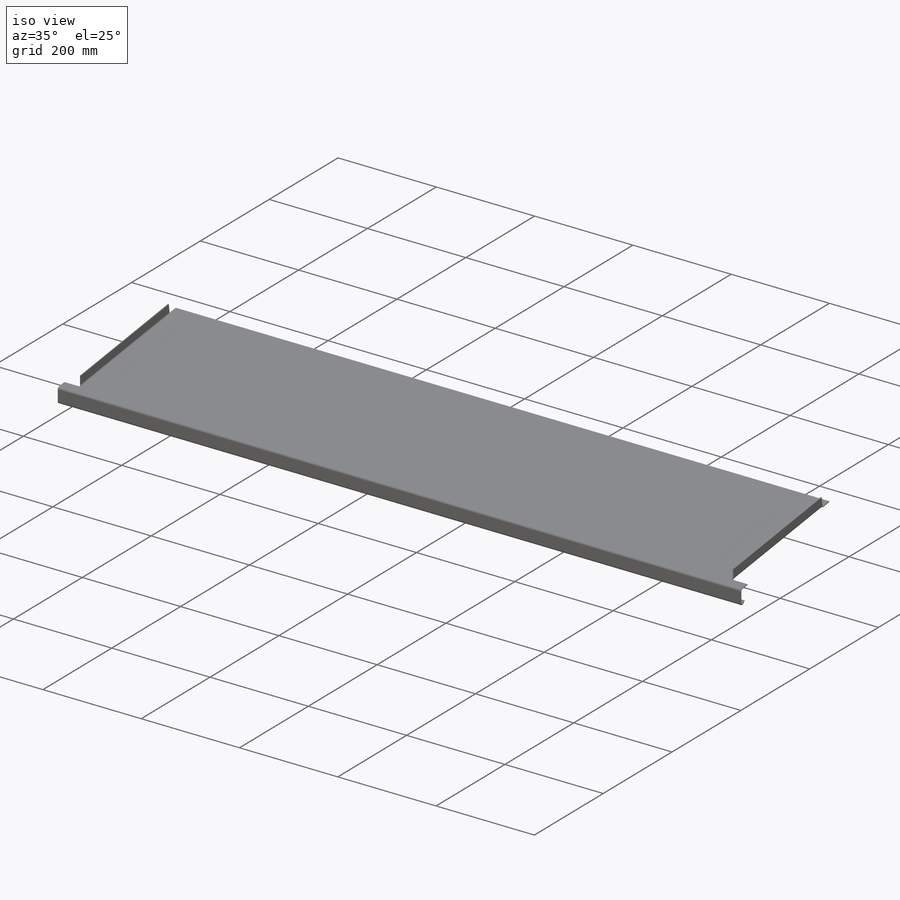
[diagram: iso view]
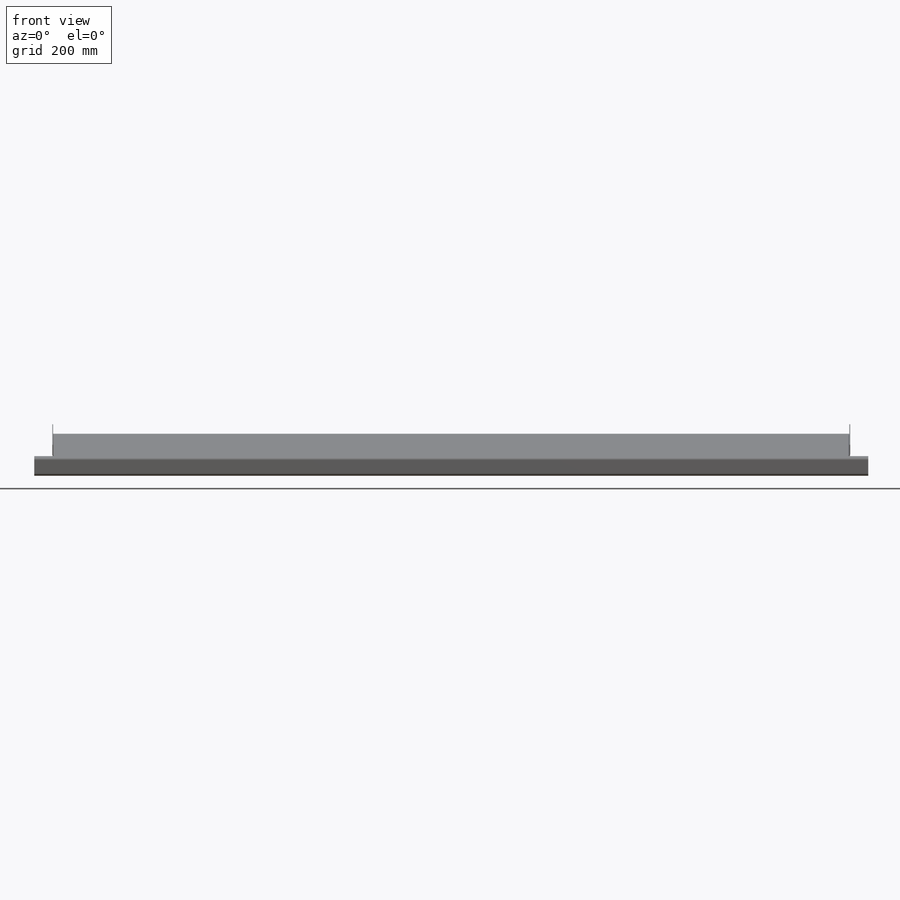
[diagram: front view]
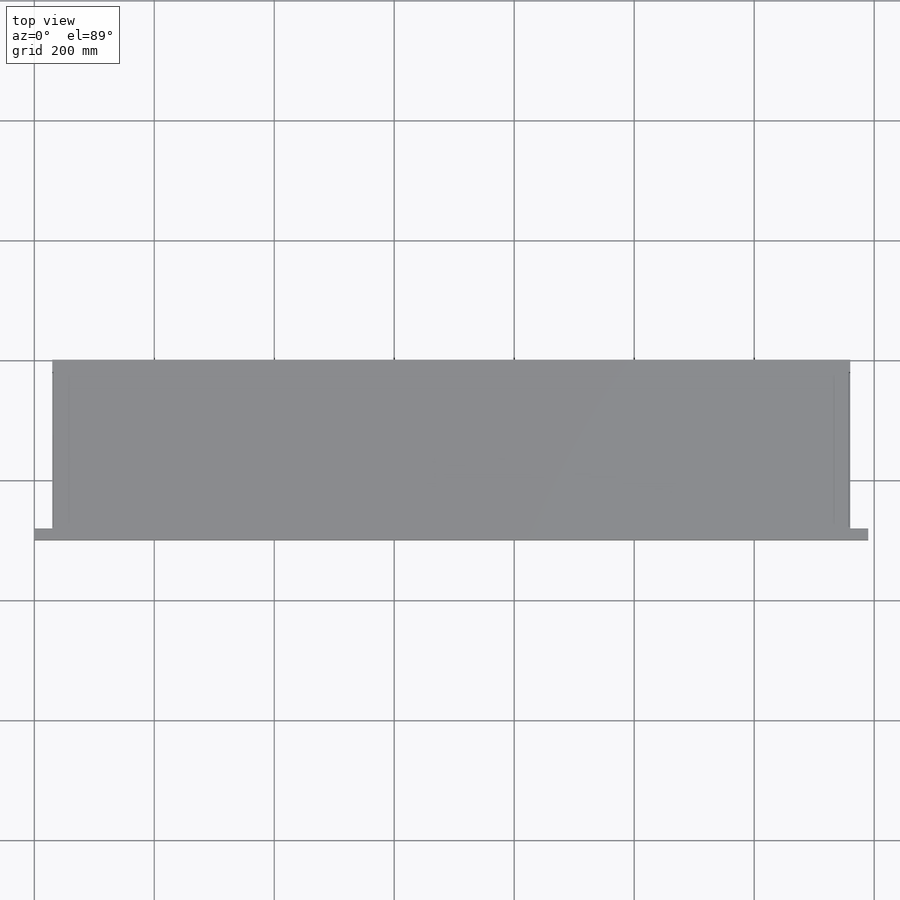
[diagram: top view]
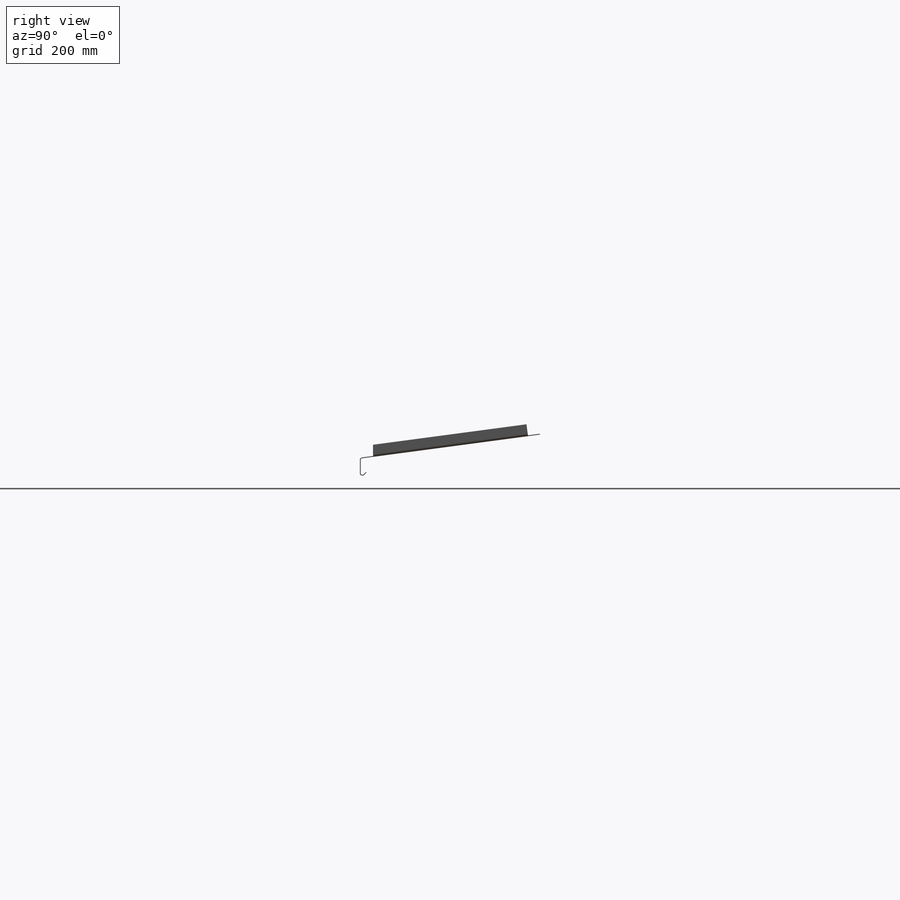
[diagram: right view]
SOLIDWORKS PART (.sldprt)
format: sldprt  version: not decoded by parser v0  size: 663,040 bytes
history: native  units: mm
features: sketch x18, sheet_metal_op x6, plane x3, cut_extrude x2, material x1 + 10 further entries (+10 scaffold rows collapsed)
feature tree (50):
  scaffold x10  (default folders/planes/origin — collapsed)
  material  "ALU"
  plane  "Plan de face"
  plane  "Plan de dessus"
  plane  "Plan de droite"
  sketch  "Esquisse1"  dims[c1.D1=345.0mm c1.D2=30.0mm c1.D3=~341.885658mm c2.D3=~97.704394deg c3.D3=40.0mm c3.D1=300.0mm c4.D1=2.6mm c4.D2=0.33 c4.D3=0.0deg]
  sheet_metal_op  "Tôle de base pliée1"
  sketch  "Esquisse6"  dims[D1=20.0mm D2=30.0mm]
  cut_extrude  "Enlèv. mat.-Extru.1"  Depth=10mm
  sketch  "Esquisse9"  dims[c1.D1=2.6mm c1.D4=~2356.19449mm c1.D5=2.0 c1.D8=0.0deg c1.D9=0.0deg c2.D1=2.6mm c2.D2=~28.64789deg c2.D3=0.0deg c2.D6=10.0mm c2.D7=10.0mm]
  sketch  "Esquisse12"  dims[D1=3.0mm D2=20.0mm]
  sketch  "Esquisse18"  dims[c1.D1=3.0mm c1.D2=20.0mm c2.D1=2.6mm c2.D4=~1570.796327mm c2.D5=3.0 c2.D8=0.0deg c2.D9=0.0deg c3.D1=2.6mm c3.D4=~1570.796327mm c3.D5=5.0 c3.D8=0.0deg c3.D9=0.0deg c4.D1=2.6mm c4.D2=~28.64789deg c4.D3=0.0deg c4.D6=10.0mm c4.D7=20.0mm c4.D8=1.0mm]
  sketch  "Esquisse16"
  cut_extrude  "Enlèv. mat.-Extru.2"  [1 undecoded]
  sketch  "Lignes de pliage1"
  sketch  "Cube de visualisation1"
  sheet_metal_op  "Tôlerie3"
  "Etat déplié3"
  sketch  "Lignes de pliage2"
  sketch  "Cube de visualisation2"
  "Transformation de l'esquisse1"
  sheet_metal_op  "Tôlerie4"
  "Etat déplié3"
  sketch  "Lignes de pliage2"
  sketch  "Cube de visualisation2"
  "Transformation de l'esquisse1"
  sheet_metal_op  "Tôlerie5"
  "Etat déplié3"
  sketch  "Lignes de pliage2"
  sketch  "Cube de visualisation2"
  "Transformation de l'esquisse1"
  sheet_metal_op  "Tôlerie6"
  "Etat déplié3"
  sketch  "Lignes de pliage2"
  sketch  "Cube de visualisation2"
  "Transformation de l'esquisse1"
  sheet_metal_op  "Tôlerie8"
  "Etat déplié3"
  sketch  "Lignes de pliage2"
  sketch  "Cube de visualisation2"
  "Transformation de l'esquisse1"
decode coverage: 6 of 26 modeling features carry decoded parameters; 10 rows unclassified (native names shown)
note: ~ marks probable driven/reference dimensions
note: 1 parameter value undecoded
note: suppression state not decoded; provenance and decode notes live in map.json
